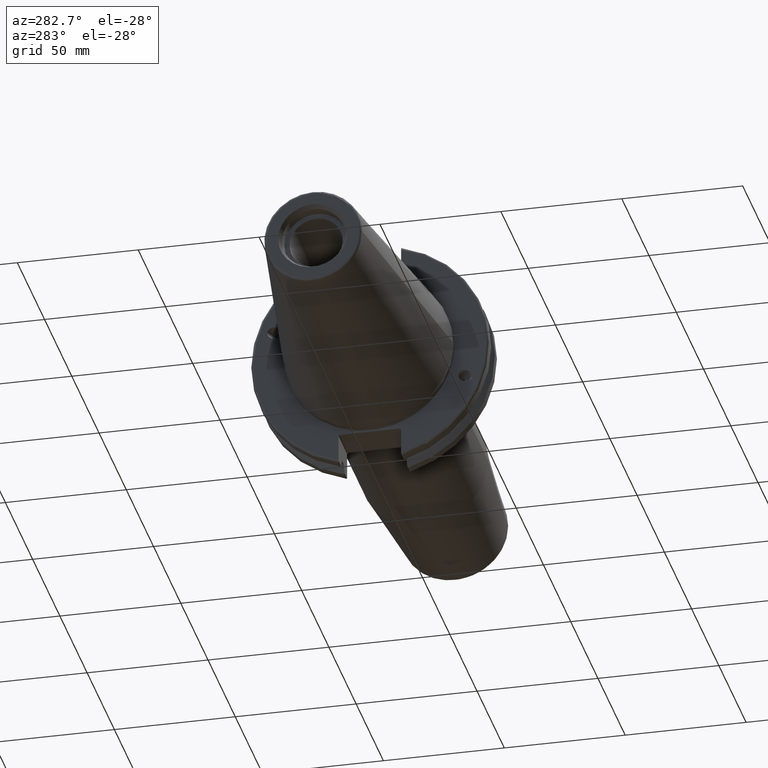
[diagram: clean part render]
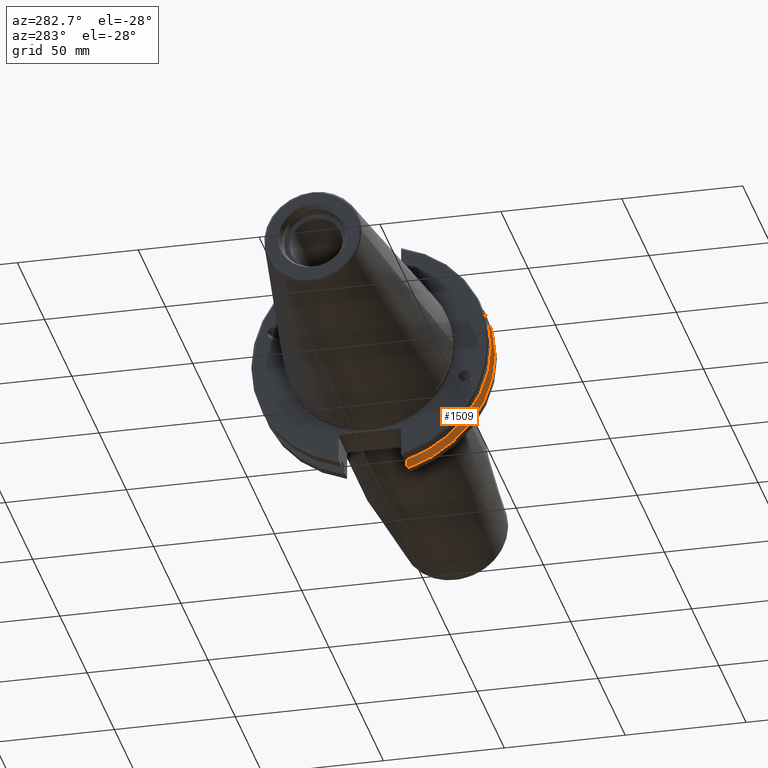
[diagram: same view with one face highlighted and labeled with its STEP entity id]
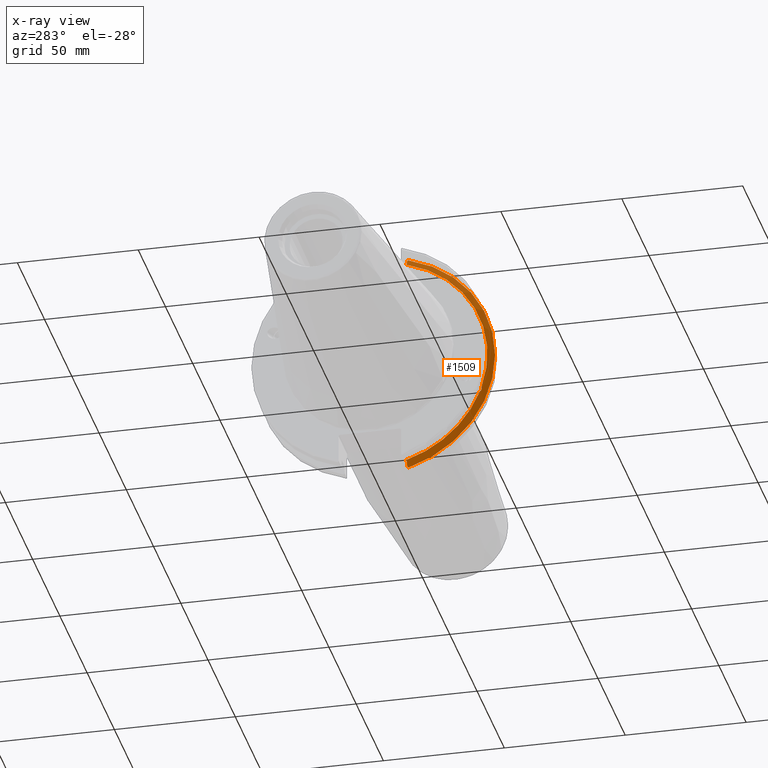
[diagram: x-ray of the same camera — body ghosted, the highlighted face saturated]
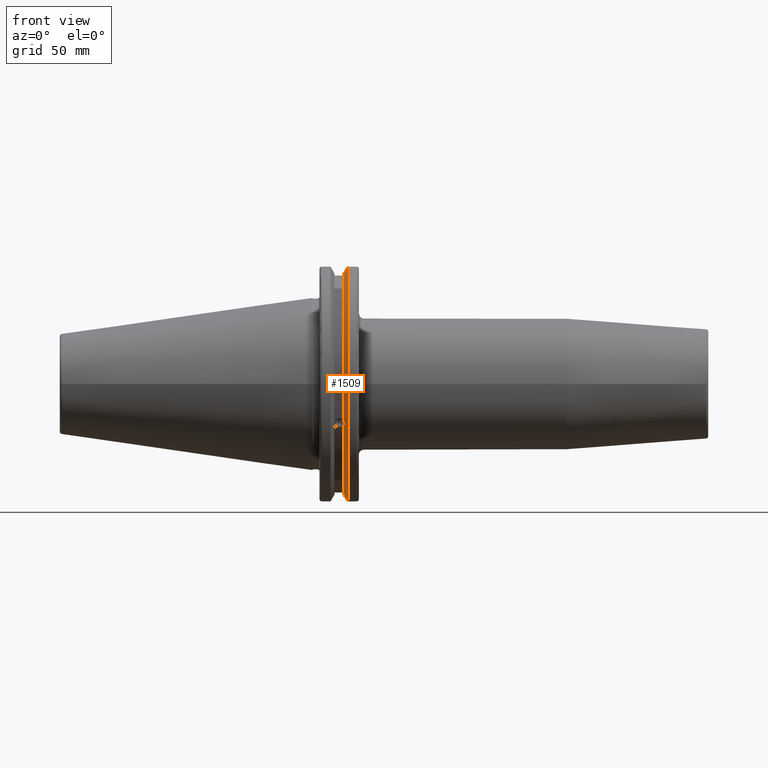
[diagram: same view with one face highlighted and labeled with its STEP entity id]
A machine part, auxiliary view. The second image highlights one B-rep face of the part: STEP entity #1509.
The next image is the same camera in x-ray: the body ghosted, the highlighted face saturated — about 0% of this face is hidden behind the body in this view.
A second angle (front view) of the same face is appended — the face is thin or edge-on in the first view.
In plain terms, the highlighted conical surface has half-angle 60 deg.
Its self-contained STEP definition (entity closure, byte-faithful):
#15=(
BOUNDED_CURVE()
B_SPLINE_CURVE(2,(#2568,#2569,#2570),.UNSPECIFIED.,.F.,.F.)
B_SPLINE_CURVE_WITH_KNOTS((3,3),(0.,0.275823910673374),.UNSPECIFIED.)
CURVE()
GEOMETRIC_REPRESENTATION_ITEM()
RATIONAL_B_SPLINE_CURVE((1.,1.00038235574978,1.00012873636953))
REPRESENTATION_ITEM('')
);
#16=(
BOUNDED_CURVE()
B_SPLINE_CURVE(2,(#2572,#2573,#2574),.UNSPECIFIED.,.F.,.F.)
B_SPLINE_CURVE_WITH_KNOTS((3,3),(0.,0.0648240472896156),.UNSPECIFIED.)
CURVE()
GEOMETRIC_REPRESENTATION_ITEM()
RATIONAL_B_SPLINE_CURVE((1.,1.00011477674884,1.00019140646027))
REPRESENTATION_ITEM('')
);
#17=(
BOUNDED_CURVE()
B_SPLINE_CURVE(2,(#2578,#2579,#2580),.UNSPECIFIED.,.F.,.F.)
B_SPLINE_CURVE_WITH_KNOTS((3,3),(0.325260944932494,0.3900849922222),
 .UNSPECIFIED.)
CURVE()
GEOMETRIC_REPRESENTATION_ITEM()
RATIONAL_B_SPLINE_CURVE((1.00019140645961,1.00011477674844,1.))
REPRESENTATION_ITEM('')
);
#18=(
BOUNDED_CURVE()
B_SPLINE_CURVE(2,(#2582,#2583,#2584),.UNSPECIFIED.,.F.,.F.)
B_SPLINE_CURVE_WITH_KNOTS((3,3),(0.0558332664531015,0.331657177124503),
 .UNSPECIFIED.)
CURVE()
GEOMETRIC_REPRESENTATION_ITEM()
RATIONAL_B_SPLINE_CURVE((1.00012873636668,1.00038235574129,1.))
REPRESENTATION_ITEM('')
);
#39=B_SPLINE_CURVE_WITH_KNOTS('',3,(#2477,#2478,#2479,#2480,#2481,#2482,
#2483,#2484),.UNSPECIFIED.,.F.,.F.,(4,2,2,4),(0.42671286835872,0.441644498666905,
0.480313313223129,0.518982127779353),.UNSPECIFIED.);
#43=B_SPLINE_CURVE_WITH_KNOTS('',3,(#2539,#2540,#2541,#2542,#2543,#2544,
#2545,#2546),.UNSPECIFIED.,.F.,.F.,(4,2,2,4),(0.518982127779353,0.557650942335576,
0.5963197568918,0.611251387199985),.UNSPECIFIED.);
#74=CONICAL_SURFACE('',#1653,47.8172386482472,1.0471975511966);
#388=FACE_OUTER_BOUND('',#488,.T.);
#488=EDGE_LOOP('',(#1147,#1148,#1149,#1150,#1151,#1152,#1153,#1154,#1155));
#590=CIRCLE('',#1654,46.4219772964944);
#591=CIRCLE('',#1655,49.2125);
#592=CIRCLE('',#1656,46.4219772964944);
#682=VERTEX_POINT('',#2474);
#683=VERTEX_POINT('',#2476);
#690=VERTEX_POINT('',#2537);
#696=VERTEX_POINT('',#2565);
#697=VERTEX_POINT('',#2567);
#698=VERTEX_POINT('',#2571);
#699=VERTEX_POINT('',#2575);
#700=VERTEX_POINT('',#2577);
#701=VERTEX_POINT('',#2581);
#851=EDGE_CURVE('',#683,#682,#39,.T.);
#859=EDGE_CURVE('',#682,#690,#43,.T.);
#867=EDGE_CURVE('',#690,#696,#590,.T.);
#868=EDGE_CURVE('',#696,#697,#15,.T.);
#869=EDGE_CURVE('',#698,#697,#16,.T.);
#870=EDGE_CURVE('',#699,#698,#591,.T.);
#871=EDGE_CURVE('',#700,#699,#17,.T.);
#872=EDGE_CURVE('',#700,#701,#18,.T.);
#873=EDGE_CURVE('',#701,#683,#592,.T.);
#1147=ORIENTED_EDGE('',*,*,#851,.T.);
#1148=ORIENTED_EDGE('',*,*,#859,.T.);
#1149=ORIENTED_EDGE('',*,*,#867,.T.);
#1150=ORIENTED_EDGE('',*,*,#868,.T.);
#1151=ORIENTED_EDGE('',*,*,#869,.F.);
#1152=ORIENTED_EDGE('',*,*,#870,.F.);
#1153=ORIENTED_EDGE('',*,*,#871,.F.);
#1154=ORIENTED_EDGE('',*,*,#872,.T.);
#1155=ORIENTED_EDGE('',*,*,#873,.T.);
#1509=ADVANCED_FACE('',(#388),#74,.T.);
#1653=AXIS2_PLACEMENT_3D('',#2564,#1913,#1914);
#1654=AXIS2_PLACEMENT_3D('',#2566,#1915,#1916);
#1655=AXIS2_PLACEMENT_3D('',#2576,#1917,#1918);
#1656=AXIS2_PLACEMENT_3D('',#2585,#1919,#1920);
#1913=DIRECTION('center_axis',(1.,0.,0.));
#1914=DIRECTION('ref_axis',(0.,-1.,-1.22464679914735E-16));
#1915=DIRECTION('center_axis',(1.,0.,0.));
#1916=DIRECTION('ref_axis',(0.,0.,-1.));
#1917=DIRECTION('center_axis',(1.,0.,0.));
#1918=DIRECTION('ref_axis',(0.,0.,-1.));
#1919=DIRECTION('center_axis',(1.,0.,0.));
#1920=DIRECTION('ref_axis',(0.,0.,-1.));
#2474=CARTESIAN_POINT('',(13.2341,-43.923494649906,-15.9868446375166));
#2476=CARTESIAN_POINT('',(13.0491,-43.9096390749305,-15.0646464421033));
#2477=CARTESIAN_POINT('Ctrl Pts',(13.0491,-43.9096390749305,-15.0646464421033));
#2478=CARTESIAN_POINT('Ctrl Pts',(13.0660815609661,-43.9250360001461,-15.1104047527575));
#2479=CARTESIAN_POINT('Ctrl Pts',(13.0821132459668,-43.9385582852181,-15.1564111356409));
#2480=CARTESIAN_POINT('Ctrl Pts',(13.1358132615496,-43.9797830409459,-15.3217566390708));
#2481=CARTESIAN_POINT('Ctrl Pts',(13.1719838933644,-43.9989016655819,-15.4570249042868));
#2482=CARTESIAN_POINT('Ctrl Pts',(13.2212913174802,-43.9931221605126,-15.7289849146254));
#2483=CARTESIAN_POINT('Ctrl Pts',(13.2341,-43.9675796948952,-15.8657219718732));
#2484=CARTESIAN_POINT('Ctrl Pts',(13.2341,-43.923494649906,-15.9868446375166));
#2537=CARTESIAN_POINT('',(13.0491,-43.3201030900029,-16.6843832486479));
#2539=CARTESIAN_POINT('Ctrl Pts',(13.2341,-43.923494649906,-15.9868446375166));
#2540=CARTESIAN_POINT('Ctrl Pts',(13.2341,-43.8794096049169,-16.10796730316));
#2541=CARTESIAN_POINT('Ctrl Pts',(13.2212913174802,-43.8110833825827,-16.2291323464527));
#2542=CARTESIAN_POINT('Ctrl Pts',(13.1719838933644,-43.6406982153492,-16.441180795372));
#2543=CARTESIAN_POINT('Ctrl Pts',(13.1358132615496,-43.5391037343221,-16.5325130832406));
#2544=CARTESIAN_POINT('Ctrl Pts',(13.0821132459668,-43.4012416983557,-16.6326763251437));
#2545=CARTESIAN_POINT('Ctrl Pts',(13.0660815609661,-43.3613106941341,-16.6592273018006));
#2546=CARTESIAN_POINT('Ctrl Pts',(13.0491,-43.3201030900029,-16.6843832486479));
#2564=CARTESIAN_POINT('Origin',(13.8546545170244,0.,0.));
#2565=CARTESIAN_POINT('',(13.0491,-12.95,-44.5791147973604));
#2566=CARTESIAN_POINT('Origin',(13.0491,0.,0.));
#2567=CARTESIAN_POINT('',(14.3818103943757,-12.95,-46.9780755322917));
#2568=CARTESIAN_POINT('Ctrl Pts',(13.0491,-12.95,-44.5791147973604));
#2569=CARTESIAN_POINT('Ctrl Pts',(13.697995509466,-12.95,-45.749496680259));
#2570=CARTESIAN_POINT('Ctrl Pts',(14.3818103943757,-12.95,-46.9780755322917));
#2571=CARTESIAN_POINT('',(14.6602090340487,-13.4317035994433,-47.3440544806494));
#2572=CARTESIAN_POINT('Ctrl Pts',(14.6602090340487,-13.4317035994433,-47.3440544806494));
#2573=CARTESIAN_POINT('Ctrl Pts',(14.5199310333617,-13.1896660169964,-47.1601640966263));
#2574=CARTESIAN_POINT('Ctrl Pts',(14.3818103943757,-12.95,-46.9780755322917));
#2575=CARTESIAN_POINT('',(14.6602090340487,-13.4317035994433,47.3440544806494));
#2576=CARTESIAN_POINT('Origin',(14.6602090340487,0.,0.));
#2577=CARTESIAN_POINT('',(14.3818103943757,-12.95,46.9780755322918));
#2578=CARTESIAN_POINT('Ctrl Pts',(14.3818103943757,-12.95,46.9780755322918));
#2579=CARTESIAN_POINT('Ctrl Pts',(14.5199310333617,-13.1896660169966,47.1601640966264));
#2580=CARTESIAN_POINT('Ctrl Pts',(14.6602090340487,-13.4317035994433,47.3440544806494));
#2581=CARTESIAN_POINT('',(13.0491,-12.95,44.5791147973604));
#2582=CARTESIAN_POINT('Ctrl Pts',(14.3818103943757,-12.95,46.9780755322918));
#2583=CARTESIAN_POINT('Ctrl Pts',(13.6979955094846,-12.95,45.7494966802924));
#2584=CARTESIAN_POINT('Ctrl Pts',(13.0491,-12.95,44.5791147973604));
#2585=CARTESIAN_POINT('Origin',(13.0491,0.,0.));